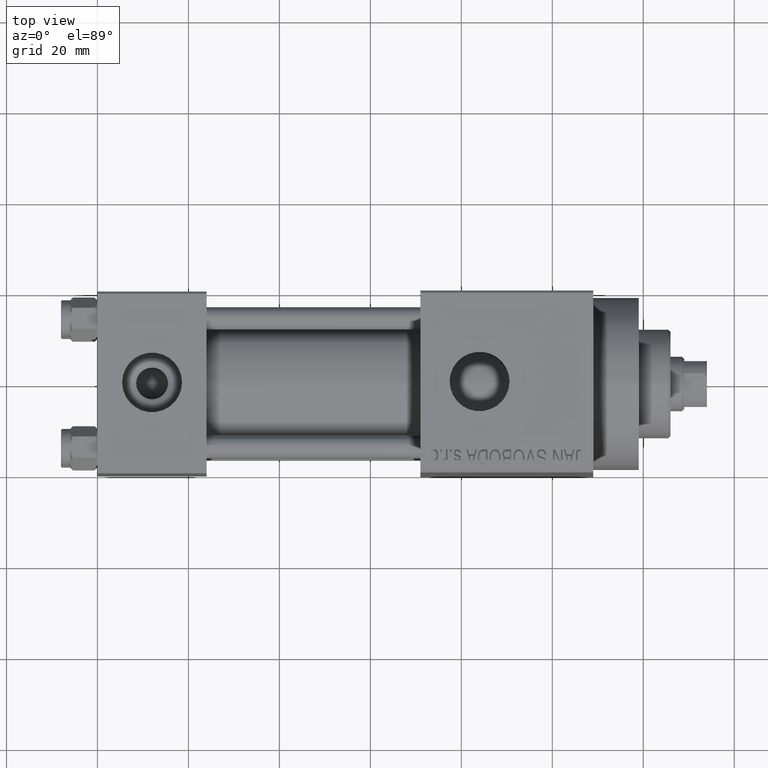
[diagram: clean part render]
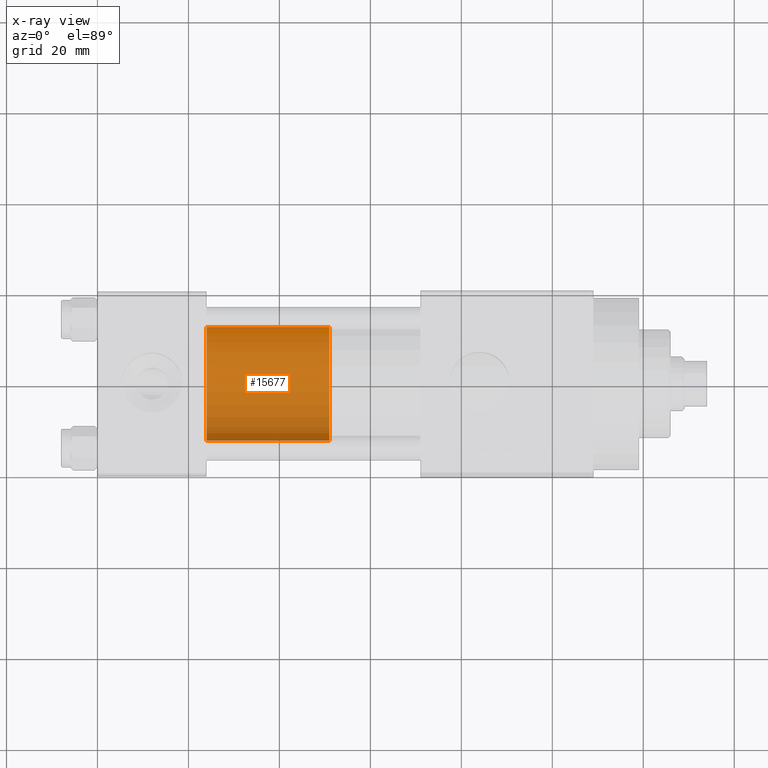
[diagram: x-ray — body ghosted, one internal face saturated and labeled with its STEP entity id]
A machine part, top view, then the same camera in x-ray: the body is ghosted and one INTERNAL B-rep face — a face not visible from any outside direction — is saturated and labeled: STEP entity #15677.
In plain terms, the highlighted cylindrical surface (partial cylindrical patch) has radius 12.5 mm, axis along (-1, 0, 0).
Its self-contained STEP definition (entity closure, byte-faithful):
#1152 = CARTESIAN_POINT ( 'NONE',  ( 0.000000000000000000, 0.000000000000000000, 0.000000000000000000 ) ) ;
#1559 = EDGE_CURVE ( 'NONE', #2241, #24267, #25850, .T. ) ;
#1696 = CARTESIAN_POINT ( 'NONE',  ( -12.50000000000000000, 0.000000000000000000, 27.00000000000000000 ) ) ;
#1805 = CARTESIAN_POINT ( 'NONE',  ( 12.50000000000000000, 1.530808498934191521E-15, 27.00000000000000000 ) ) ;
#2017 = ORIENTED_EDGE ( 'NONE', *, *, #3678, .F. ) ;
#2241 = VERTEX_POINT ( 'NONE', #1805 ) ;
#2481 = VERTEX_POINT ( 'NONE', #46252 ) ;
#2647 = EDGE_CURVE ( 'NONE', #2241, #2481, #46494, .T. ) ;
#3678 = EDGE_CURVE ( 'NONE', #24267, #27560, #34315, .T. ) ;
#3822 = CYLINDRICAL_SURFACE ( 'NONE', #32279, 12.50000000000000000 ) ;
#5804 = DIRECTION ( 'NONE',  ( 0.000000000000000000, 0.000000000000000000, 1.000000000000000000 ) ) ;
#5872 = EDGE_LOOP ( 'NONE', ( #36484, #29483, #45163, #2017 ) ) ;
#7451 = DIRECTION ( 'NONE',  ( -0.000000000000000000, -0.000000000000000000, -1.000000000000000000 ) ) ;
#12699 = DIRECTION ( 'NONE',  ( 1.000000000000000000, 0.000000000000000000, 0.000000000000000000 ) ) ;
#12939 = CARTESIAN_POINT ( 'NONE',  ( 0.000000000000000000, 0.000000000000000000, 27.00000000000000000 ) ) ;
#15671 = DIRECTION ( 'NONE',  ( 0.000000000000000000, 0.000000000000000000, 1.000000000000000000 ) ) ;
#15677 = ADVANCED_FACE ( 'NONE', ( #36431 ), #3822, .T. ) ;
#16895 = CARTESIAN_POINT ( 'NONE',  ( -12.50000000000000000, 0.000000000000000000, 27.00000000000000000 ) ) ;
#21776 = AXIS2_PLACEMENT_3D ( 'NONE', #1152, #15671, #30209 ) ;
#22039 = AXIS2_PLACEMENT_3D ( 'NONE', #12939, #5804, #12699 ) ;
#24267 = VERTEX_POINT ( 'NONE', #16895 ) ;
#24340 = VECTOR ( 'NONE', #7451, 1000.000000000000000 ) ;
#24992 = CARTESIAN_POINT ( 'NONE',  ( 0.000000000000000000, 0.000000000000000000, 27.00000000000000000 ) ) ;
#25850 = CIRCLE ( 'NONE', #22039, 12.50000000000000000 ) ;
#27560 = VERTEX_POINT ( 'NONE', #45395 ) ;
#29483 = ORIENTED_EDGE ( 'NONE', *, *, #2647, .T. ) ;
#30209 = DIRECTION ( 'NONE',  ( 1.000000000000000000, 0.000000000000000000, 0.000000000000000000 ) ) ;
#31136 = EDGE_CURVE ( 'NONE', #2481, #27560, #42307, .T. ) ;
#32279 = AXIS2_PLACEMENT_3D ( 'NONE', #24992, #39532, #46905 ) ;
#34315 = LINE ( 'NONE', #1696, #44879 ) ;
#35031 = DIRECTION ( 'NONE',  ( -0.000000000000000000, -0.000000000000000000, -1.000000000000000000 ) ) ;
#36262 = CARTESIAN_POINT ( 'NONE',  ( 12.50000000000000000, 1.530808498934191521E-15, 27.00000000000000000 ) ) ;
#36431 = FACE_OUTER_BOUND ( 'NONE', #5872, .T. ) ;
#36484 = ORIENTED_EDGE ( 'NONE', *, *, #1559, .F. ) ;
#39532 = DIRECTION ( 'NONE',  ( -0.000000000000000000, -0.000000000000000000, -1.000000000000000000 ) ) ;
#42307 = CIRCLE ( 'NONE', #21776, 12.50000000000000000 ) ;
#44879 = VECTOR ( 'NONE', #35031, 1000.000000000000000 ) ;
#45163 = ORIENTED_EDGE ( 'NONE', *, *, #31136, .T. ) ;
#45395 = CARTESIAN_POINT ( 'NONE',  ( -12.50000000000000000, 0.000000000000000000, 0.000000000000000000 ) ) ;
#46252 = CARTESIAN_POINT ( 'NONE',  ( 12.50000000000000000, 1.530808498934191521E-15, 0.000000000000000000 ) ) ;
#46494 = LINE ( 'NONE', #36262, #24340 ) ;
#46905 = DIRECTION ( 'NONE',  ( -1.000000000000000000, 0.000000000000000000, 0.000000000000000000 ) ) ;